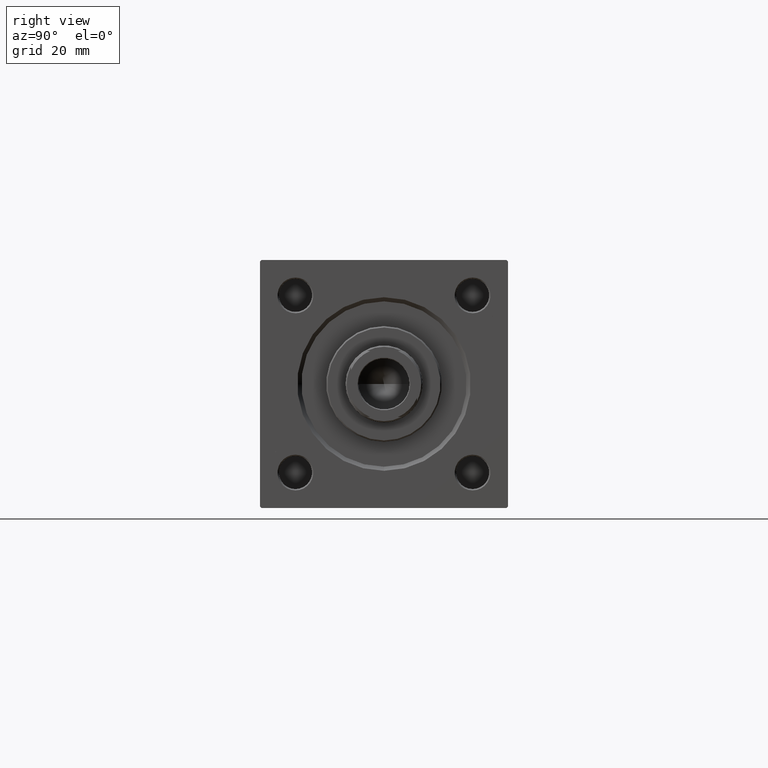
[diagram: clean part render]
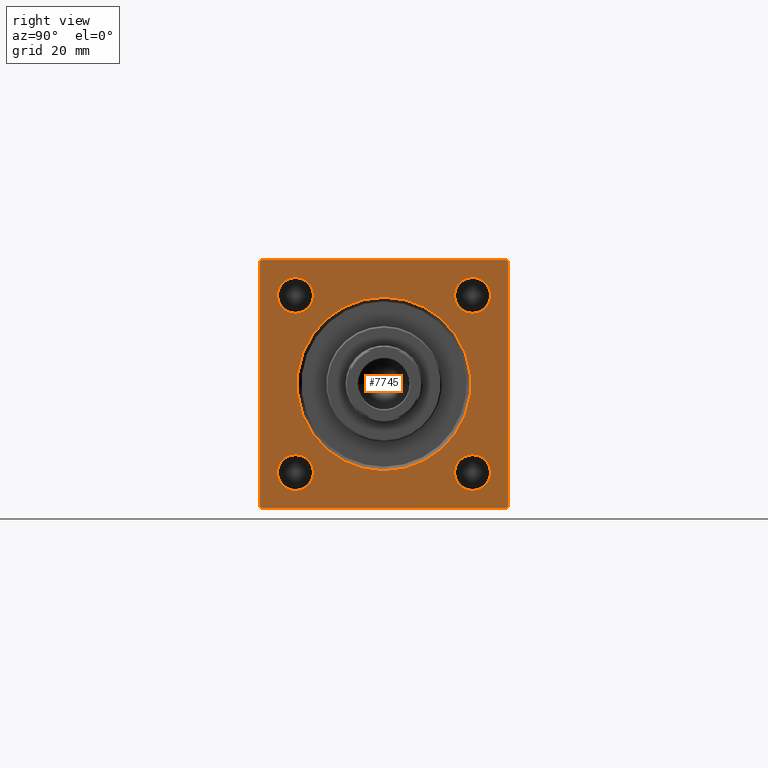
[diagram: same view with one face highlighted and labeled with its STEP entity id]
A machine part, right view. The second image highlights one B-rep face of the part: STEP entity #7745.
In plain terms, the highlighted planar face has unit normal (-1, 0, 0).
Its self-contained STEP definition (entity closure, byte-faithful):
#27 = EDGE_CURVE ( 'NONE', #2983, #39197, #30306, .T. ) ;
#166 = VERTEX_POINT ( 'NONE', #27731 ) ;
#194 = DIRECTION ( 'NONE',  ( 0.000000000000000000, 0.7071067811865525687, -0.7071067811865425767 ) ) ;
#251 = ORIENTED_EDGE ( 'NONE', *, *, #4133, .T. ) ;
#478 = DIRECTION ( 'NONE',  ( -0.000000000000000000, 0.000000000000000000, 1.000000000000000000 ) ) ;
#576 = CARTESIAN_POINT ( 'NONE',  ( 185.0000000000000000, -32.15000000000001279, -32.15000000000000568 ) ) ;
#829 = ORIENTED_EDGE ( 'NONE', *, *, #16553, .T. ) ;
#1321 = VERTEX_POINT ( 'NONE', #31486 ) ;
#1541 = VERTEX_POINT ( 'NONE', #34225 ) ;
#1711 = ORIENTED_EDGE ( 'NONE', *, *, #15795, .T. ) ;
#1893 = CARTESIAN_POINT ( 'NONE',  ( 185.0000000000000000, -32.14999999999999147, 38.64999999999999858 ) ) ;
#2564 = DIRECTION ( 'NONE',  ( 0.000000000000000000, 0.000000000000000000, 1.000000000000000000 ) ) ;
#2983 = VERTEX_POINT ( 'NONE', #10900 ) ;
#3029 = VERTEX_POINT ( 'NONE', #1893 ) ;
#3342 = VERTEX_POINT ( 'NONE', #12026 ) ;
#3595 = DIRECTION ( 'NONE',  ( -1.000000000000000000, -0.000000000000000000, -0.000000000000000000 ) ) ;
#3788 = CARTESIAN_POINT ( 'NONE',  ( 185.0000000000000000, 32.14999999999999147, 32.15000000000000568 ) ) ;
#3858 = CARTESIAN_POINT ( 'NONE',  ( 185.0000000000000000, 44.50000000000001421, -45.00000000000000000 ) ) ;
#4027 = LINE ( 'NONE', #7072, #18836 ) ;
#4133 = EDGE_CURVE ( 'NONE', #3029, #11792, #43779, .T. ) ;
#4561 = EDGE_CURVE ( 'NONE', #11515, #1541, #11405, .T. ) ;
#5026 = CARTESIAN_POINT ( 'NONE',  ( 185.0000000000000000, 32.14999999999999147, 32.15000000000000568 ) ) ;
#5105 = ORIENTED_EDGE ( 'NONE', *, *, #35939, .T. ) ;
#5178 = LINE ( 'NONE', #48103, #6779 ) ;
#5643 = ORIENTED_EDGE ( 'NONE', *, *, #9062, .F. ) ;
#5705 = FACE_BOUND ( 'NONE', #10761, .T. ) ;
#5715 = DIRECTION ( 'NONE',  ( 0.000000000000000000, 0.000000000000000000, 1.000000000000000000 ) ) ;
#6212 = DIRECTION ( 'NONE',  ( -1.000000000000000000, -0.000000000000000000, -0.000000000000000000 ) ) ;
#6601 = DIRECTION ( 'NONE',  ( 0.000000000000000000, 0.000000000000000000, -1.000000000000000000 ) ) ;
#6636 = CARTESIAN_POINT ( 'NONE',  ( 185.0000000000000000, -45.00000000000000000, 44.50000000000001421 ) ) ;
#6779 = VECTOR ( 'NONE', #13292, 1000.000000000000114 ) ;
#7072 = CARTESIAN_POINT ( 'NONE',  ( 185.0000000000000000, -45.00000000000000000, 44.50000000000001421 ) ) ;
#7443 = DIRECTION ( 'NONE',  ( 0.000000000000000000, 0.000000000000000000, 1.000000000000000000 ) ) ;
#7506 = CARTESIAN_POINT ( 'NONE',  ( 185.0000000000000000, -44.50000000000000000, 44.99999999999998579 ) ) ;
#7745 = ADVANCED_FACE ( 'NONE', ( #21468, #8325, #5705, #21218, #17389, #32895 ), #44578, .F. ) ;
#8325 = FACE_BOUND ( 'NONE', #16035, .T. ) ;
#8405 = AXIS2_PLACEMENT_3D ( 'NONE', #18193, #49181, #34201 ) ;
#8552 = LINE ( 'NONE', #27663, #26212 ) ;
#8889 = EDGE_CURVE ( 'NONE', #11792, #3029, #28598, .T. ) ;
#8899 = AXIS2_PLACEMENT_3D ( 'NONE', #22703, #26784, #7443 ) ;
#9062 = EDGE_CURVE ( 'NONE', #2983, #17033, #44975, .T. ) ;
#9528 = EDGE_CURVE ( 'NONE', #166, #1321, #34992, .T. ) ;
#10690 = ORIENTED_EDGE ( 'NONE', *, *, #9528, .T. ) ;
#10761 = EDGE_LOOP ( 'NONE', ( #23958, #49475 ) ) ;
#10900 = CARTESIAN_POINT ( 'NONE',  ( 185.0000000000000000, 45.00000000000001421, 44.50000000000000000 ) ) ;
#11405 = CIRCLE ( 'NONE', #35722, 31.50000000000000000 ) ;
#11467 = CARTESIAN_POINT ( 'NONE',  ( 185.0000000000000000, 44.50000000000001421, 45.00000000000000000 ) ) ;
#11515 = VERTEX_POINT ( 'NONE', #41990 ) ;
#11792 = VERTEX_POINT ( 'NONE', #24934 ) ;
#11976 = DIRECTION ( 'NONE',  ( -1.000000000000000000, -0.000000000000000000, -0.000000000000000000 ) ) ;
#12026 = CARTESIAN_POINT ( 'NONE',  ( 185.0000000000000000, 32.14999999999999147, 25.65000000000000568 ) ) ;
#12223 = EDGE_CURVE ( 'NONE', #17109, #3342, #48963, .T. ) ;
#13292 = DIRECTION ( 'NONE',  ( -0.000000000000000000, 0.7071067811865474617, 0.7071067811865474617 ) ) ;
#13564 = CARTESIAN_POINT ( 'NONE',  ( 185.0000000000000000, 0.000000000000000000, 0.000000000000000000 ) ) ;
#13853 = LINE ( 'NONE', #23651, #29515 ) ;
#14436 = ORIENTED_EDGE ( 'NONE', *, *, #27, .T. ) ;
#14525 = VERTEX_POINT ( 'NONE', #34182 ) ;
#14615 = VERTEX_POINT ( 'NONE', #7506 ) ;
#15074 = ORIENTED_EDGE ( 'NONE', *, *, #4561, .T. ) ;
#15243 = ORIENTED_EDGE ( 'NONE', *, *, #45124, .T. ) ;
#15366 = EDGE_CURVE ( 'NONE', #44664, #166, #13853, .T. ) ;
#15593 = DIRECTION ( 'NONE',  ( 0.000000000000000000, 0.000000000000000000, 1.000000000000000000 ) ) ;
#15719 = DIRECTION ( 'NONE',  ( 0.000000000000000000, 0.000000000000000000, 1.000000000000000000 ) ) ;
#15795 = EDGE_CURVE ( 'NONE', #33971, #17033, #5178, .T. ) ;
#15903 = EDGE_CURVE ( 'NONE', #14525, #45860, #46593, .T. ) ;
#15991 = ORIENTED_EDGE ( 'NONE', *, *, #15366, .T. ) ;
#16035 = EDGE_LOOP ( 'NONE', ( #48571, #251 ) ) ;
#16317 = CARTESIAN_POINT ( 'NONE',  ( 185.0000000000000000, -32.15000000000001279, -32.15000000000000568 ) ) ;
#16343 = CARTESIAN_POINT ( 'NONE',  ( 185.0000000000000000, 32.14999999999999147, -25.64999999999999858 ) ) ;
#16553 = EDGE_CURVE ( 'NONE', #1541, #11515, #30364, .T. ) ;
#16562 = CARTESIAN_POINT ( 'NONE',  ( 185.0000000000000000, 44.50000000000001421, 45.00000000000000000 ) ) ;
#17033 = VERTEX_POINT ( 'NONE', #31590 ) ;
#17109 = VERTEX_POINT ( 'NONE', #47802 ) ;
#17206 = DIRECTION ( 'NONE',  ( -1.000000000000000000, -0.000000000000000000, -0.000000000000000000 ) ) ;
#17389 = FACE_BOUND ( 'NONE', #23634, .T. ) ;
#17780 = LINE ( 'NONE', #30264, #27831 ) ;
#18193 = CARTESIAN_POINT ( 'NONE',  ( 185.0000000000000000, 0.000000000000000000, 0.000000000000000000 ) ) ;
#18493 = EDGE_CURVE ( 'NONE', #3342, #17109, #49073, .T. ) ;
#18836 = VECTOR ( 'NONE', #27180, 1000.000000000000114 ) ;
#19051 = EDGE_LOOP ( 'NONE', ( #15991, #10690, #43961, #1711, #5643, #14436, #15243, #44672 ) ) ;
#20909 = EDGE_LOOP ( 'NONE', ( #5105, #44476 ) ) ;
#21218 = FACE_BOUND ( 'NONE', #20909, .T. ) ;
#21468 = FACE_BOUND ( 'NONE', #35342, .T. ) ;
#22703 = CARTESIAN_POINT ( 'NONE',  ( 185.0000000000000000, 32.14999999999999147, -32.15000000000000568 ) ) ;
#22875 = AXIS2_PLACEMENT_3D ( 'NONE', #16317, #31831, #15593 ) ;
#23634 = EDGE_LOOP ( 'NONE', ( #15074, #829 ) ) ;
#23651 = CARTESIAN_POINT ( 'NONE',  ( 185.0000000000000000, -45.00000000000000000, 44.99999999999998579 ) ) ;
#23861 = DIRECTION ( 'NONE',  ( -1.000000000000000000, 0.000000000000000000, -0.000000000000000000 ) ) ;
#23958 = ORIENTED_EDGE ( 'NONE', *, *, #15903, .T. ) ;
#24934 = CARTESIAN_POINT ( 'NONE',  ( 185.0000000000000000, -32.14999999999999147, 25.64999999999998437 ) ) ;
#26212 = VECTOR ( 'NONE', #27904, 1000.000000000000000 ) ;
#26784 = DIRECTION ( 'NONE',  ( -1.000000000000000000, -0.000000000000000000, -0.000000000000000000 ) ) ;
#27013 = VECTOR ( 'NONE', #194, 999.9999999999998863 ) ;
#27180 = DIRECTION ( 'NONE',  ( -0.000000000000000000, -0.7071067811865474617, -0.7071067811865474617 ) ) ;
#27297 = DIRECTION ( 'NONE',  ( -1.000000000000000000, -0.000000000000000000, -0.000000000000000000 ) ) ;
#27663 = CARTESIAN_POINT ( 'NONE',  ( 185.0000000000000000, 45.00000000000001421, 45.00000000000000000 ) ) ;
#27731 = CARTESIAN_POINT ( 'NONE',  ( 185.0000000000000000, -44.99999999999999289, -44.49999999999997158 ) ) ;
#27831 = VECTOR ( 'NONE', #29750, 1000.000000000000000 ) ;
#27904 = DIRECTION ( 'NONE',  ( 0.000000000000000000, -1.000000000000000000, -1.541976423090495140E-16 ) ) ;
#28341 = CARTESIAN_POINT ( 'NONE',  ( 185.0000000000000000, -32.15000000000001279, -25.64999999999999858 ) ) ;
#28598 = CIRCLE ( 'NONE', #35061, 6.500000000000005329 ) ;
#29420 = DIRECTION ( 'NONE',  ( 0.000000000000000000, 0.000000000000000000, 1.000000000000000000 ) ) ;
#29515 = VECTOR ( 'NONE', #40556, 1000.000000000000000 ) ;
#29750 = DIRECTION ( 'NONE',  ( 0.000000000000000000, -1.000000000000000000, 0.000000000000000000 ) ) ;
#30264 = CARTESIAN_POINT ( 'NONE',  ( 185.0000000000000000, 45.00000000000001421, -45.00000000000000000 ) ) ;
#30306 = LINE ( 'NONE', #11467, #42102 ) ;
#30364 = CIRCLE ( 'NONE', #8405, 31.50000000000000000 ) ;
#30992 = VERTEX_POINT ( 'NONE', #44856 ) ;
#31486 = CARTESIAN_POINT ( 'NONE',  ( 185.0000000000000000, -44.49999999999995737, -45.00000000000000000 ) ) ;
#31582 = DIRECTION ( 'NONE',  ( 0.000000000000000000, 0.000000000000000000, 1.000000000000000000 ) ) ;
#31590 = CARTESIAN_POINT ( 'NONE',  ( 185.0000000000000000, 45.00000000000001421, -44.49999999999997158 ) ) ;
#31830 = VECTOR ( 'NONE', #6601, 1000.000000000000000 ) ;
#31831 = DIRECTION ( 'NONE',  ( -1.000000000000000000, -0.000000000000000000, -0.000000000000000000 ) ) ;
#31983 = DIRECTION ( 'NONE',  ( 0.000000000000000000, 0.000000000000000000, 1.000000000000000000 ) ) ;
#32895 = FACE_OUTER_BOUND ( 'NONE', #19051, .T. ) ;
#33270 = ORIENTED_EDGE ( 'NONE', *, *, #12223, .T. ) ;
#33396 = CIRCLE ( 'NONE', #22875, 6.500000000000005329 ) ;
#33971 = VERTEX_POINT ( 'NONE', #3858 ) ;
#34182 = CARTESIAN_POINT ( 'NONE',  ( 185.0000000000000000, -32.15000000000001279, -38.65000000000001990 ) ) ;
#34201 = DIRECTION ( 'NONE',  ( 0.000000000000000000, 0.000000000000000000, 1.000000000000000000 ) ) ;
#34225 = CARTESIAN_POINT ( 'NONE',  ( 185.0000000000000000, 3.857637417314162689E-15, 31.50000000000000000 ) ) ;
#34746 = CARTESIAN_POINT ( 'NONE',  ( 185.0000000000000000, -44.49999999999998579, -45.00000000000000000 ) ) ;
#34847 = DIRECTION ( 'NONE',  ( 0.000000000000000000, -0.7071067811865474617, 0.7071067811865474617 ) ) ;
#34992 = LINE ( 'NONE', #34746, #27013 ) ;
#35061 = AXIS2_PLACEMENT_3D ( 'NONE', #48899, #6212, #5715 ) ;
#35342 = EDGE_LOOP ( 'NONE', ( #46326, #33270 ) ) ;
#35354 = CARTESIAN_POINT ( 'NONE',  ( 185.0000000000000000, 0.000000000000000000, 0.000000000000000000 ) ) ;
#35722 = AXIS2_PLACEMENT_3D ( 'NONE', #35354, #11976, #42251 ) ;
#35939 = EDGE_CURVE ( 'NONE', #30992, #49806, #40474, .T. ) ;
#37639 = CARTESIAN_POINT ( 'NONE',  ( 185.0000000000000000, 32.14999999999999147, -32.15000000000000568 ) ) ;
#38055 = AXIS2_PLACEMENT_3D ( 'NONE', #37639, #3595, #2564 ) ;
#38194 = EDGE_CURVE ( 'NONE', #49806, #30992, #40544, .T. ) ;
#39197 = VERTEX_POINT ( 'NONE', #16562 ) ;
#39311 = AXIS2_PLACEMENT_3D ( 'NONE', #3788, #46460, #15719 ) ;
#39837 = DIRECTION ( 'NONE',  ( -1.000000000000000000, -0.000000000000000000, -0.000000000000000000 ) ) ;
#40474 = CIRCLE ( 'NONE', #38055, 6.500000000000005329 ) ;
#40544 = CIRCLE ( 'NONE', #8899, 6.500000000000005329 ) ;
#40556 = DIRECTION ( 'NONE',  ( 0.000000000000000000, 7.709882115452478166E-17, -1.000000000000000000 ) ) ;
#41990 = CARTESIAN_POINT ( 'NONE',  ( 185.0000000000000000, 0.000000000000000000, -31.50000000000000000 ) ) ;
#42102 = VECTOR ( 'NONE', #34847, 1000.000000000000114 ) ;
#42251 = DIRECTION ( 'NONE',  ( 0.000000000000000000, 0.000000000000000000, 1.000000000000000000 ) ) ;
#42792 = EDGE_CURVE ( 'NONE', #45860, #14525, #33396, .T. ) ;
#43012 = AXIS2_PLACEMENT_3D ( 'NONE', #48960, #17206, #29420 ) ;
#43144 = AXIS2_PLACEMENT_3D ( 'NONE', #13564, #23861, #478 ) ;
#43779 = CIRCLE ( 'NONE', #43012, 6.500000000000005329 ) ;
#43961 = ORIENTED_EDGE ( 'NONE', *, *, #49377, .F. ) ;
#44040 = EDGE_CURVE ( 'NONE', #14615, #44664, #4027, .T. ) ;
#44476 = ORIENTED_EDGE ( 'NONE', *, *, #38194, .T. ) ;
#44578 = PLANE ( 'NONE',  #43144 ) ;
#44664 = VERTEX_POINT ( 'NONE', #6636 ) ;
#44672 = ORIENTED_EDGE ( 'NONE', *, *, #44040, .T. ) ;
#44856 = CARTESIAN_POINT ( 'NONE',  ( 185.0000000000000000, 32.14999999999999147, -38.65000000000001990 ) ) ;
#44897 = AXIS2_PLACEMENT_3D ( 'NONE', #5026, #39837, #31983 ) ;
#44975 = LINE ( 'NONE', #45736, #31830 ) ;
#45124 = EDGE_CURVE ( 'NONE', #39197, #14615, #8552, .T. ) ;
#45736 = CARTESIAN_POINT ( 'NONE',  ( 185.0000000000000000, 45.00000000000001421, 45.00000000000000000 ) ) ;
#45750 = AXIS2_PLACEMENT_3D ( 'NONE', #576, #27297, #31582 ) ;
#45860 = VERTEX_POINT ( 'NONE', #28341 ) ;
#46326 = ORIENTED_EDGE ( 'NONE', *, *, #18493, .T. ) ;
#46460 = DIRECTION ( 'NONE',  ( -1.000000000000000000, -0.000000000000000000, -0.000000000000000000 ) ) ;
#46593 = CIRCLE ( 'NONE', #45750, 6.500000000000005329 ) ;
#47802 = CARTESIAN_POINT ( 'NONE',  ( 185.0000000000000000, 32.14999999999999147, 38.65000000000000568 ) ) ;
#48103 = CARTESIAN_POINT ( 'NONE',  ( 185.0000000000000000, 45.00000000000001421, -44.50000000000000000 ) ) ;
#48571 = ORIENTED_EDGE ( 'NONE', *, *, #8889, .T. ) ;
#48899 = CARTESIAN_POINT ( 'NONE',  ( 185.0000000000000000, -32.14999999999999147, 32.14999999999999147 ) ) ;
#48960 = CARTESIAN_POINT ( 'NONE',  ( 185.0000000000000000, -32.14999999999999147, 32.14999999999999147 ) ) ;
#48963 = CIRCLE ( 'NONE', #44897, 6.499999999999999112 ) ;
#49073 = CIRCLE ( 'NONE', #39311, 6.499999999999999112 ) ;
#49181 = DIRECTION ( 'NONE',  ( -1.000000000000000000, -0.000000000000000000, -0.000000000000000000 ) ) ;
#49377 = EDGE_CURVE ( 'NONE', #33971, #1321, #17780, .T. ) ;
#49475 = ORIENTED_EDGE ( 'NONE', *, *, #42792, .T. ) ;
#49806 = VERTEX_POINT ( 'NONE', #16343 ) ;